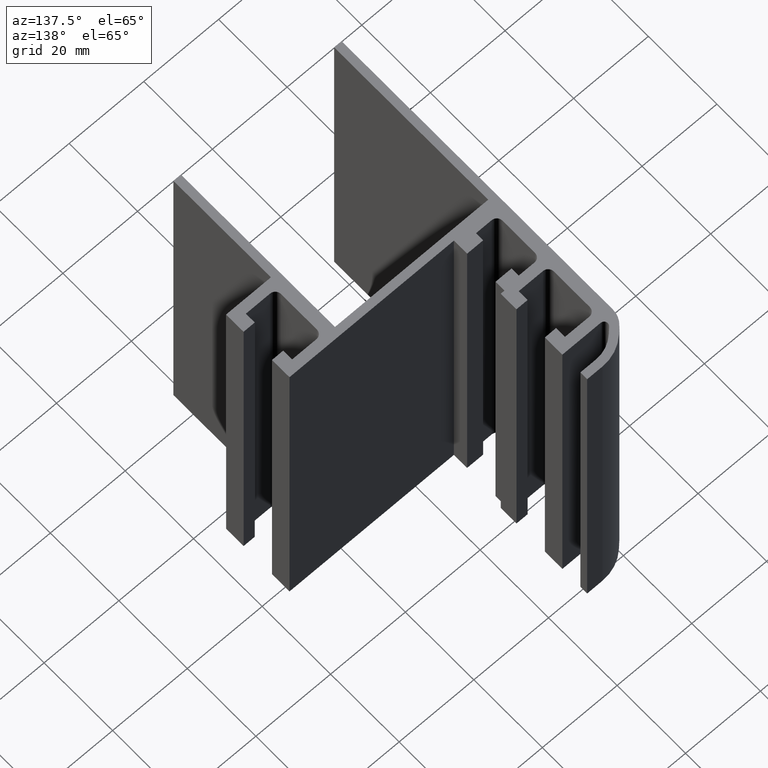
[diagram: clean part render]
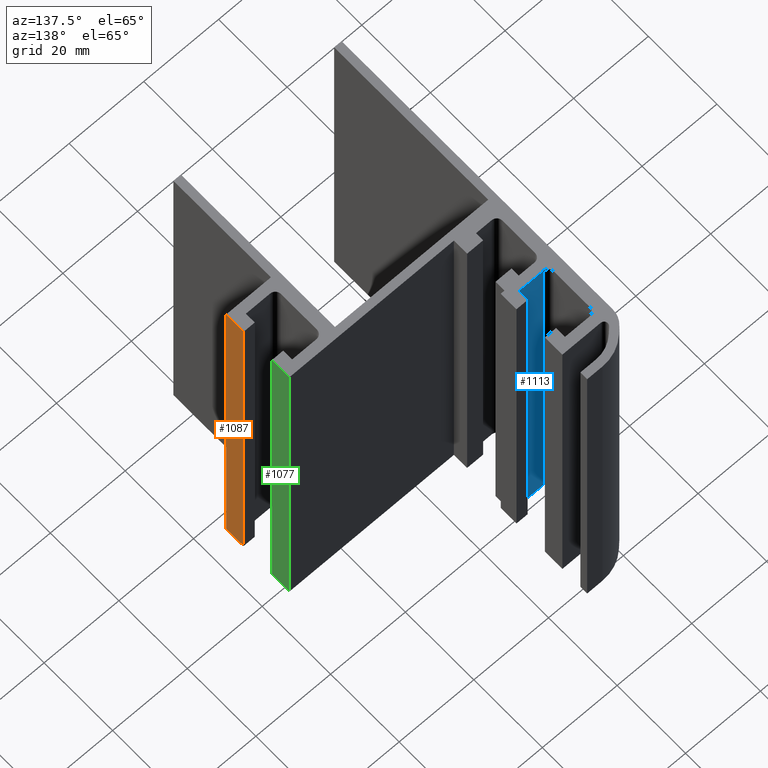
[diagram: same view with three faces highlighted in distinct colors, each labeled with its STEP entity id]
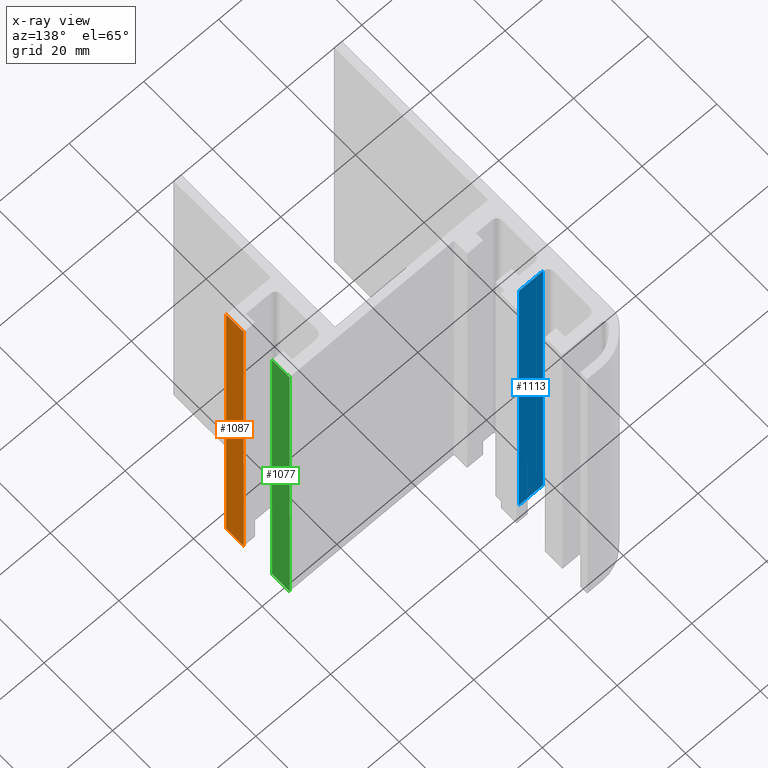
[diagram: x-ray of the same camera — body ghosted, the three highlighted faces saturated]
A machine part, auxiliary view with three faces highlighted in distinct colors.
The next image is the same camera in x-ray (body ghosted, the three faces saturated) — at least one of them is partly hidden behind the body in this view.
Their STEP definitions:

[orange] entity #1087 — the highlighted planar face has unit normal (1, 0, 0).
#71=FACE_OUTER_BOUND('',#126,.T.);
#126=EDGE_LOOP('',(#802,#803,#804,#805));
#225=LINE('',#1643,#364);
#226=LINE('',#1646,#365);
#227=LINE('',#1648,#366);
#228=LINE('',#1649,#367);
#364=VECTOR('',#1333,100.);
#365=VECTOR('',#1336,5.09999999999991);
#366=VECTOR('',#1337,5.09999999999991);
#367=VECTOR('',#1338,100.);
#485=VERTEX_POINT('',#1639);
#486=VERTEX_POINT('',#1641);
#487=VERTEX_POINT('',#1645);
#488=VERTEX_POINT('',#1647);
#617=EDGE_CURVE('',#485,#486,#225,.T.);
#618=EDGE_CURVE('',#487,#485,#226,.T.);
#619=EDGE_CURVE('',#488,#486,#227,.T.);
#620=EDGE_CURVE('',#487,#488,#228,.T.);
#802=ORIENTED_EDGE('',*,*,#618,.T.);
#803=ORIENTED_EDGE('',*,*,#617,.T.);
#804=ORIENTED_EDGE('',*,*,#619,.F.);
#805=ORIENTED_EDGE('',*,*,#620,.F.);
#1038=PLANE('',#1152);
#1087=ADVANCED_FACE('',(#71),#1038,.T.);
#1152=AXIS2_PLACEMENT_3D('',#1644,#1334,#1335);
#1333=DIRECTION('',(0.,0.,1.));
#1334=DIRECTION('center_axis',(1.,0.,0.));
#1335=DIRECTION('ref_axis',(0.,1.,0.));
#1336=DIRECTION('',(0.,1.,0.));
#1337=DIRECTION('',(0.,1.,0.));
#1338=DIRECTION('',(0.,0.,1.));
#1639=CARTESIAN_POINT('',(34.4999999999997,-11.3999999999999,0.));
#1641=CARTESIAN_POINT('',(34.4999999999997,-11.3999999999999,100.));
#1643=CARTESIAN_POINT('',(34.4999999999997,-11.3999999999999,0.));
#1644=CARTESIAN_POINT('Origin',(34.4999999999997,-16.4999999999998,0.));
#1645=CARTESIAN_POINT('',(34.4999999999997,-16.4999999999998,0.));
#1646=CARTESIAN_POINT('',(34.4999999999997,-16.4999999999998,0.));
#1647=CARTESIAN_POINT('',(34.4999999999997,-16.4999999999998,100.));
#1648=CARTESIAN_POINT('',(34.4999999999997,-16.4999999999998,100.));
#1649=CARTESIAN_POINT('',(34.4999999999997,-16.4999999999998,0.));

[blue] entity #1113 — the highlighted planar face has unit normal (0, 1, 0).
#97=FACE_OUTER_BOUND('',#152,.T.);
#152=EDGE_LOOP('',(#906,#907,#908,#909));
#156=LINE('',#1490,#295);
#291=LINE('',#1799,#430);
#292=LINE('',#1801,#431);
#293=LINE('',#1802,#432);
#295=VECTOR('',#1198,100.);
#430=VECTOR('',#1475,100.);
#431=VECTOR('',#1478,6.49999999999973);
#432=VECTOR('',#1479,6.49999999999973);
#434=VERTEX_POINT('',#1487);
#435=VERTEX_POINT('',#1489);
#537=VERTEX_POINT('',#1795);
#538=VERTEX_POINT('',#1797);
#540=EDGE_CURVE('',#434,#435,#156,.T.);
#695=EDGE_CURVE('',#537,#538,#291,.T.);
#696=EDGE_CURVE('',#434,#537,#292,.T.);
#697=EDGE_CURVE('',#435,#538,#293,.T.);
#906=ORIENTED_EDGE('',*,*,#696,.T.);
#907=ORIENTED_EDGE('',*,*,#695,.T.);
#908=ORIENTED_EDGE('',*,*,#697,.F.);
#909=ORIENTED_EDGE('',*,*,#540,.F.);
#1058=PLANE('',#1190);
#1113=ADVANCED_FACE('',(#97),#1058,.T.);
#1190=AXIS2_PLACEMENT_3D('',#1800,#1476,#1477);
#1198=DIRECTION('',(0.,0.,1.));
#1475=DIRECTION('',(0.,0.,1.));
#1476=DIRECTION('center_axis',(0.,1.,0.));
#1477=DIRECTION('ref_axis',(-1.,0.,0.));
#1478=DIRECTION('',(-1.,0.,0.));
#1479=DIRECTION('',(-1.,0.,0.));
#1487=CARTESIAN_POINT('',(-11.5000000000005,18.75,0.));
#1489=CARTESIAN_POINT('',(-11.5000000000005,18.75,100.));
#1490=CARTESIAN_POINT('',(-11.5000000000005,18.75,0.));
#1795=CARTESIAN_POINT('',(-18.0000000000002,18.75,0.));
#1797=CARTESIAN_POINT('',(-18.0000000000002,18.75,100.));
#1799=CARTESIAN_POINT('',(-18.0000000000002,18.75,0.));
#1800=CARTESIAN_POINT('Origin',(-11.5000000000005,18.75,0.));
#1801=CARTESIAN_POINT('',(-11.5000000000005,18.75,0.));
#1802=CARTESIAN_POINT('',(-11.5000000000005,18.75,100.));

[green] entity #1077 — the highlighted planar face has unit normal (1, 0, 0).
#61=FACE_OUTER_BOUND('',#116,.T.);
#116=EDGE_LOOP('',(#762,#763,#764,#765));
#199=LINE('',#1583,#338);
#200=LINE('',#1586,#339);
#201=LINE('',#1588,#340);
#202=LINE('',#1589,#341);
#338=VECTOR('',#1279,100.);
#339=VECTOR('',#1282,5.10000000000002);
#340=VECTOR('',#1283,5.10000000000002);
#341=VECTOR('',#1284,100.);
#465=VERTEX_POINT('',#1579);
#466=VERTEX_POINT('',#1581);
#467=VERTEX_POINT('',#1585);
#468=VERTEX_POINT('',#1587);
#587=EDGE_CURVE('',#465,#466,#199,.T.);
#588=EDGE_CURVE('',#467,#465,#200,.T.);
#589=EDGE_CURVE('',#468,#466,#201,.T.);
#590=EDGE_CURVE('',#467,#468,#202,.T.);
#762=ORIENTED_EDGE('',*,*,#588,.T.);
#763=ORIENTED_EDGE('',*,*,#587,.T.);
#764=ORIENTED_EDGE('',*,*,#589,.F.);
#765=ORIENTED_EDGE('',*,*,#590,.F.);
#1030=PLANE('',#1138);
#1077=ADVANCED_FACE('',(#61),#1030,.T.);
#1138=AXIS2_PLACEMENT_3D('',#1584,#1280,#1281);
#1279=DIRECTION('',(0.,0.,1.));
#1280=DIRECTION('center_axis',(1.,5.92118946466748E-14,0.));
#1281=DIRECTION('ref_axis',(-5.89750470680883E-14,1.,0.));
#1282=DIRECTION('',(-5.92118946466748E-14,1.,0.));
#1283=DIRECTION('',(-5.92118946466748E-14,1.,0.));
#1284=DIRECTION('',(0.,0.,1.));
#1579=CARTESIAN_POINT('',(34.4999999999997,1.99999999999999,0.));
#1581=CARTESIAN_POINT('',(34.4999999999997,1.99999999999999,100.));
#1583=CARTESIAN_POINT('',(34.4999999999997,1.99999999999999,0.));
#1584=CARTESIAN_POINT('Origin',(34.5,-3.10000000000002,0.));
#1585=CARTESIAN_POINT('',(34.5,-3.10000000000002,0.));
#1586=CARTESIAN_POINT('',(34.5,-3.10000000000002,0.));
#1587=CARTESIAN_POINT('',(34.5,-3.10000000000002,100.));
#1588=CARTESIAN_POINT('',(34.5,-3.10000000000002,100.));
#1589=CARTESIAN_POINT('',(34.5,-3.10000000000002,0.));